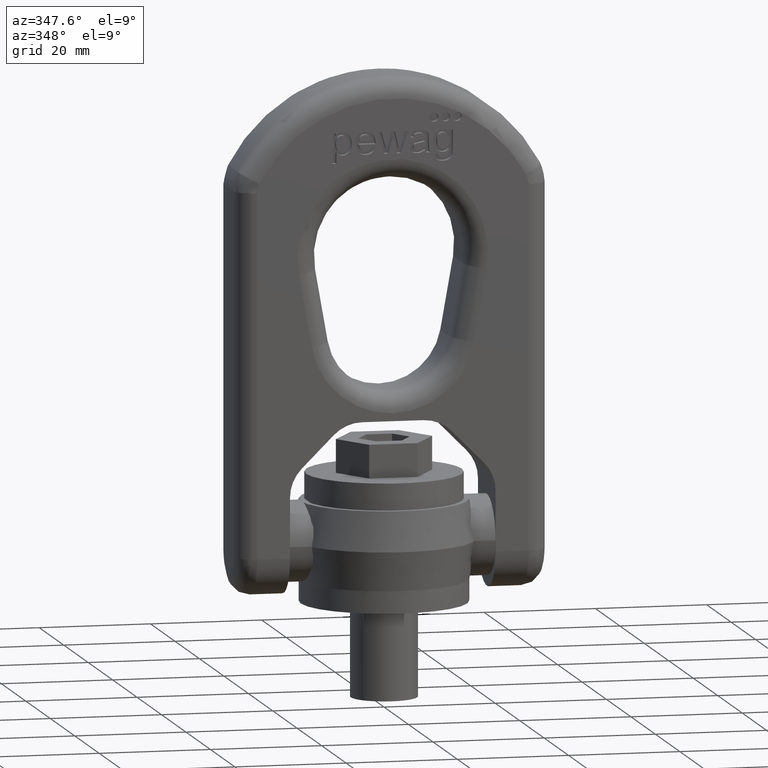
[diagram: clean part render]
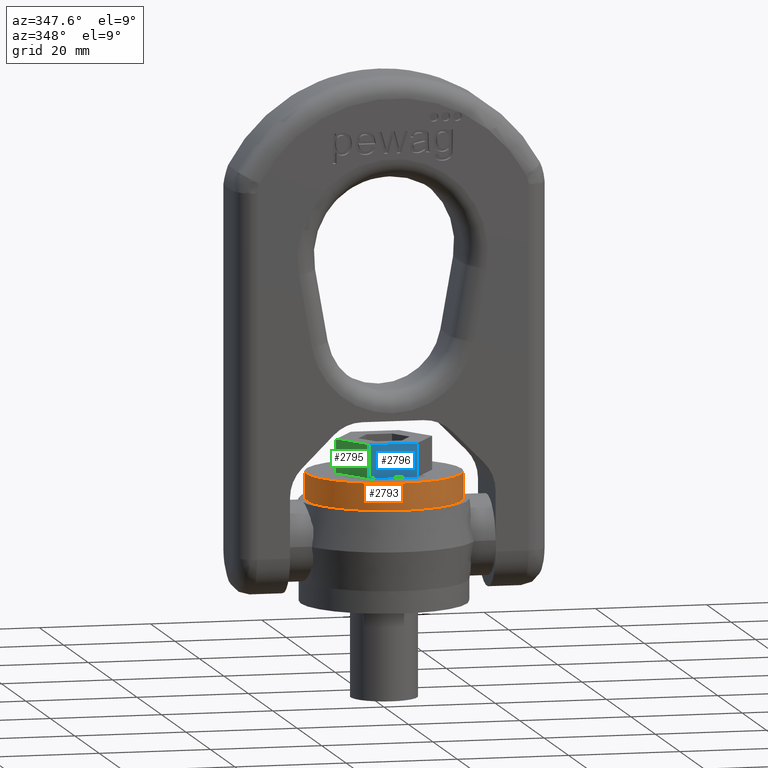
[diagram: same view with three faces highlighted in distinct colors, each labeled with its STEP entity id]
A machine part, auxiliary view with three faces highlighted in distinct colors.
Their STEP definitions:

[orange] entity #2793 — the highlighted cylindrical surface (bore or boss wall) has radius 14 mm, axis along (0, 0, -1).
#2793=ADVANCED_FACE('',(#3081,#3082),#3042,.T.);
#3042=CYLINDRICAL_SURFACE('',#5843,14.);
#3081=FACE_BOUND('',#3150,.T.);
#3082=FACE_BOUND('',#3151,.T.);
#3150=EDGE_LOOP('',(#3446));
#3151=EDGE_LOOP('',(#3447));
#3446=ORIENTED_EDGE('',*,*,#5124,.T.);
#3447=ORIENTED_EDGE('',*,*,#5123,.F.);
#4703=VERTEX_POINT('',#6956);
#4704=VERTEX_POINT('',#6959);
#5123=EDGE_CURVE('',#4703,#4703,#5755,.T.);
#5124=EDGE_CURVE('',#4704,#4704,#5756,.T.);
#5755=CIRCLE('',#5840,14.);
#5756=CIRCLE('',#5842,14.);
#5840=AXIS2_PLACEMENT_3D('',#6955,#6090,#6091);
#5842=AXIS2_PLACEMENT_3D('',#6958,#6094,#6095);
#5843=AXIS2_PLACEMENT_3D('',#6960,#6096,#6097);
#6090=DIRECTION('',(0.,0.,-1.));
#6091=DIRECTION('',(-1.,0.,0.));
#6094=DIRECTION('',(0.,0.,-1.));
#6095=DIRECTION('',(-1.,0.,0.));
#6096=DIRECTION('',(0.,0.,-1.));
#6097=DIRECTION('',(-1.,0.,0.));
#6955=CARTESIAN_POINT('',(0.,0.,18.2));
#6956=CARTESIAN_POINT('',(-14.,0.,18.2));
#6958=CARTESIAN_POINT('',(0.,0.,23.));
#6959=CARTESIAN_POINT('',(-14.,0.,23.));
#6960=CARTESIAN_POINT('',(0.,0.,0.));

[blue] entity #2796 — the highlighted planar face has unit normal (0, 1, 0).
#1734=LINE('',#6972,#2042);
#1735=LINE('',#6974,#2043);
#1738=LINE('',#6980,#2046);
#1739=LINE('',#6982,#2047);
#2042=VECTOR('',#6103,1.);
#2043=VECTOR('',#6106,1.);
#2046=VECTOR('',#6111,1.);
#2047=VECTOR('',#6112,1.);
#2439=FACE_OUTER_BOUND('',#3155,.T.);
#2670=PLANE('',#5846);
#2796=ADVANCED_FACE('',(#2439),#2670,.F.);
#3155=EDGE_LOOP('',(#3459,#3460,#3461,#3462));
#3459=ORIENTED_EDGE('',*,*,#5130,.T.);
#3460=ORIENTED_EDGE('',*,*,#5134,.F.);
#3461=ORIENTED_EDGE('',*,*,#5135,.F.);
#3462=ORIENTED_EDGE('',*,*,#5131,.T.);
#4706=VERTEX_POINT('',#6963);
#4710=VERTEX_POINT('',#6971);
#4711=VERTEX_POINT('',#6975);
#4713=VERTEX_POINT('',#6981);
#5130=EDGE_CURVE('',#4706,#4710,#1734,.T.);
#5131=EDGE_CURVE('',#4711,#4706,#1735,.T.);
#5134=EDGE_CURVE('',#4713,#4710,#1738,.T.);
#5135=EDGE_CURVE('',#4711,#4713,#1739,.T.);
#5846=AXIS2_PLACEMENT_3D('',#6983,#6113,#6114);
#6103=DIRECTION('',(1.,0.,0.));
#6106=DIRECTION('',(0.,0.,-1.));
#6111=DIRECTION('',(0.,0.,-1.));
#6112=DIRECTION('',(1.,0.,0.));
#6113=DIRECTION('',(0.,1.,0.));
#6114=DIRECTION('',(0.,0.,1.));
#6963=CARTESIAN_POINT('',(-4.33012701892219,-7.5,23.));
#6971=CARTESIAN_POINT('',(4.33012701892219,-7.5,23.));
#6972=CARTESIAN_POINT('',(-4.33012701892219,-7.5,23.));
#6974=CARTESIAN_POINT('',(-4.33012701892219,-7.5,29.));
#6975=CARTESIAN_POINT('',(-4.33012701892219,-7.5,29.));
#6980=CARTESIAN_POINT('',(4.33012701892219,-7.5,29.));
#6981=CARTESIAN_POINT('',(4.33012701892219,-7.5,29.));
#6982=CARTESIAN_POINT('',(-4.33012701892219,-7.5,29.));
#6983=CARTESIAN_POINT('',(-4.33012701892219,-7.5,29.));

[green] entity #2795 — the highlighted planar face has unit normal (0.866, 0.5, 0).
#1729=LINE('',#6961,#2037);
#1735=LINE('',#6974,#2043);
#1736=LINE('',#6976,#2044);
#1737=LINE('',#6978,#2045);
#2037=VECTOR('',#6098,1.);
#2043=VECTOR('',#6106,1.);
#2044=VECTOR('',#6107,1.);
#2045=VECTOR('',#6108,1.);
#2438=FACE_OUTER_BOUND('',#3154,.T.);
#2669=PLANE('',#5845);
#2795=ADVANCED_FACE('',(#2438),#2669,.F.);
#3154=EDGE_LOOP('',(#3455,#3456,#3457,#3458));
#3455=ORIENTED_EDGE('',*,*,#5125,.T.);
#3456=ORIENTED_EDGE('',*,*,#5131,.F.);
#3457=ORIENTED_EDGE('',*,*,#5132,.F.);
#3458=ORIENTED_EDGE('',*,*,#5133,.T.);
#4705=VERTEX_POINT('',#6962);
#4706=VERTEX_POINT('',#6963);
#4711=VERTEX_POINT('',#6975);
#4712=VERTEX_POINT('',#6977);
#5125=EDGE_CURVE('',#4705,#4706,#1729,.T.);
#5131=EDGE_CURVE('',#4711,#4706,#1735,.T.);
#5132=EDGE_CURVE('',#4712,#4711,#1736,.T.);
#5133=EDGE_CURVE('',#4712,#4705,#1737,.T.);
#5845=AXIS2_PLACEMENT_3D('',#6979,#6109,#6110);
#6098=DIRECTION('',(0.5,-0.866025403784438,0.));
#6106=DIRECTION('',(0.,0.,-1.));
#6107=DIRECTION('',(0.5,-0.866025403784438,0.));
#6108=DIRECTION('',(0.,0.,-1.));
#6109=DIRECTION('',(0.866025403784439,0.5,0.));
#6110=DIRECTION('',(-0.5,0.866025403784439,0.));
#6961=CARTESIAN_POINT('',(-8.66025403784439,0.,23.));
#6962=CARTESIAN_POINT('',(-8.66025403784439,0.,23.));
#6963=CARTESIAN_POINT('',(-4.33012701892219,-7.5,23.));
#6974=CARTESIAN_POINT('',(-4.33012701892219,-7.5,29.));
#6975=CARTESIAN_POINT('',(-4.33012701892219,-7.5,29.));
#6976=CARTESIAN_POINT('',(-8.66025403784439,0.,29.));
#6977=CARTESIAN_POINT('',(-8.66025403784439,0.,29.));
#6978=CARTESIAN_POINT('',(-8.66025403784439,0.,29.));
#6979=CARTESIAN_POINT('',(-8.66025403784439,0.,29.));